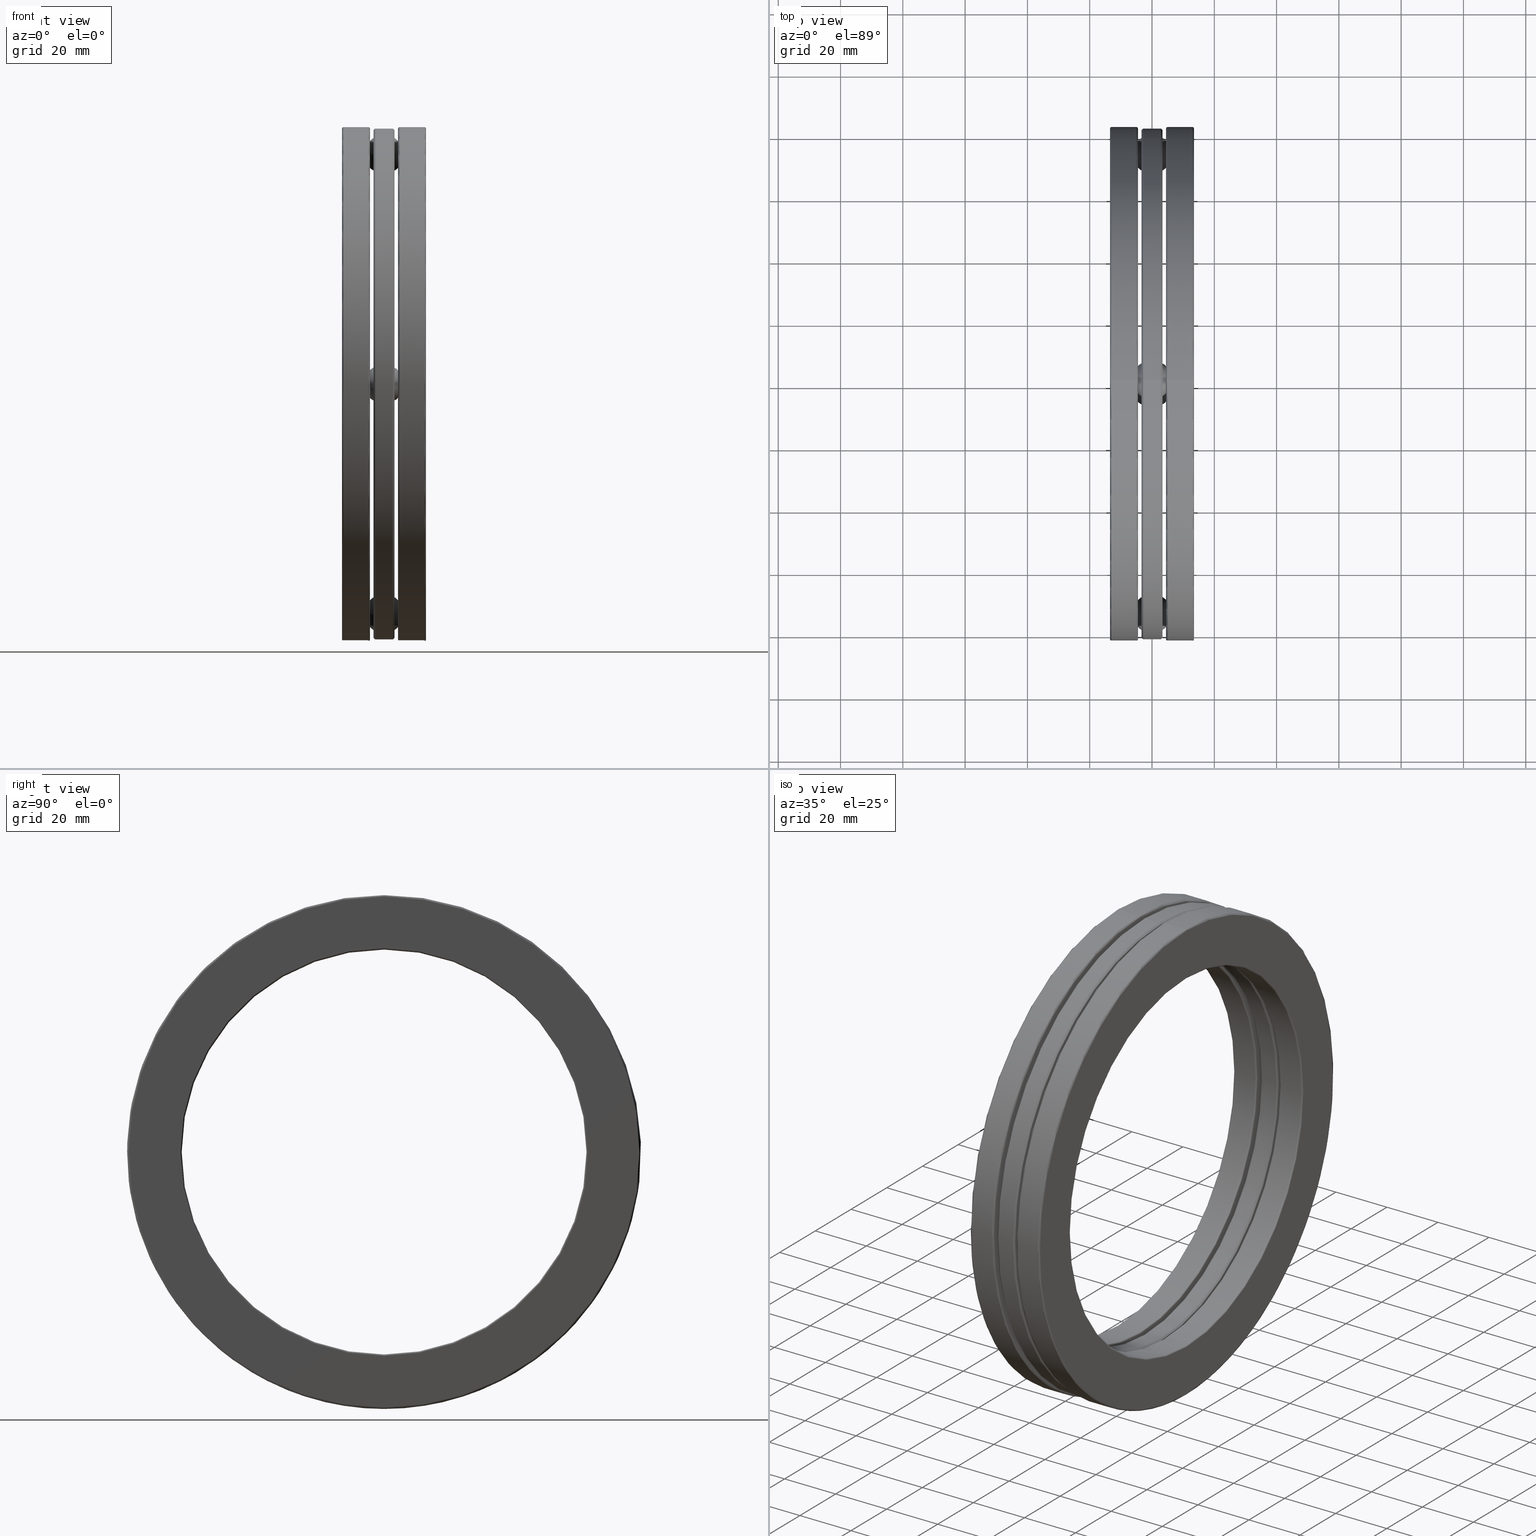
[diagram: canonical four-view strip — front | top / right | iso, engineering-drawing reading convention]
A machine part, canonical four-view strip (front | top / right | iso — engineering-drawing reading convention). The complete STEP part file that produces these views, byte-faithful:
ISO-10303-21;
HEADER;
FILE_DESCRIPTION (( 'STEP AP203' ),
    '1' );
FILE_NAME ('2925-ABB.step',
    '2017-03-07T16:43:18',
    ( '' ),
    ( '' ),
    'SwSTEP 2.0',
    'SolidWorks 2017',
    '' );
FILE_SCHEMA (( 'CONFIG_CONTROL_DESIGN' ));
ENDSEC;

DATA;
#1 = ADVANCED_FACE ( 'NONE', ( #8, #143 ), #30, .F. ) ;
#2 = ORIENTED_EDGE ( 'NONE', *, *, #285, .F. ) ;
#3 = ORIENTED_EDGE ( 'NONE', *, *, #446, .F. ) ;
#4 = CARTESIAN_POINT ( 'NONE',  ( 0.5115000000000016200, 0.0000000000000000000, 0.0000000000000000000 ) ) ;
#5 = EDGE_CURVE ( 'NONE', #334, #334, #506, .T. ) ;
#6 = VERTEX_POINT ( 'NONE', #663 ) ;
#7 = CARTESIAN_POINT ( 'NONE',  ( 1.777880990662169400E-016, 2.903500000000000200, 0.0000000000000000000 ) ) ;
#8 = FACE_OUTER_BOUND ( 'NONE', #462, .T. ) ;
#9 = SECURITY_CLASSIFICATION ( '', '', #171 ) ;
#10 = ORIENTED_EDGE ( 'NONE', *, *, #251, .T. ) ;
#11 = ADVANCED_FACE ( 'NONE', ( #370, #434 ), #253, .F. ) ;
#12 = APPROVAL_PERSON_ORGANIZATION ( #187, #584, #306 ) ;
#13 = FACE_OUTER_BOUND ( 'NONE', #211, .T. ) ;
#14 = DIRECTION ( 'NONE',  ( 0.0000000000000000000, 0.0000000000000000000, 1.000000000000000000 ) ) ;
#15 = AXIS2_PLACEMENT_3D ( 'NONE', #577, #312, #757 ) ;
#16 = DIRECTION ( 'NONE',  ( 0.0000000000000000000, 0.0000000000000000000, 1.000000000000000000 ) ) ;
#17 = CARTESIAN_POINT ( 'NONE',  ( 0.1971702100000013400, 0.0000000000000000000, 0.0000000000000000000 ) ) ;
#18 = ORIENTED_EDGE ( 'NONE', *, *, #747, .T. ) ;
#19 = FACE_BOUND ( 'NONE', #738, .T. ) ;
#20 = CLOSED_SHELL ( 'NONE', ( #393 ) ) ;
#21 = MANIFOLD_SOLID_BREP ( 'Revolve1', #290 ) ;
#22 = APPROVAL_DATE_TIME ( #68, #706 ) ;
#23 = DIRECTION ( 'NONE',  ( -1.000000000000000000, -0.0000000000000000000, -0.0000000000000000000 ) ) ;
#24 = FACE_BOUND ( 'NONE', #708, .T. ) ;
#25 = DIRECTION ( 'NONE',  ( 1.000000000000000000, 0.0000000000000000000, 0.0000000000000000000 ) ) ;
#26 = AXIS2_PLACEMENT_3D ( 'NONE', #325, #771, #256 ) ;
#27 =( LENGTH_UNIT ( ) NAMED_UNIT ( * ) SI_UNIT ( $, .METRE. ) );
#28 = CONICAL_SURFACE ( 'NONE', #520, 2.598999999999999800, 0.7853981633974427300 ) ;
#29 = DIRECTION ( 'NONE',  ( -1.000000000000000000, -0.0000000000000000000, -0.0000000000000000000 ) ) ;
#30 = CYLINDRICAL_SURFACE ( 'NONE', #15, 2.559000000000000200 ) ;
#31 = EDGE_LOOP ( 'NONE', ( #788 ) ) ;
#32 = EDGE_CURVE ( 'NONE', #693, #693, #648, .T. ) ;
#33 = CARTESIAN_POINT ( 'NONE',  ( -0.1971702099999996800, 0.0000000000000000000, 2.559000000000000200 ) ) ;
#34 = CARTESIAN_POINT ( 'NONE',  ( -0.1771702099999997200, 0.0000000000000000000, 0.0000000000000000000 ) ) ;
#35 = LOCAL_TIME ( 11, 43, 18.00000000000000000, #206 ) ;
#36 = DIRECTION ( 'NONE',  ( 0.0000000000000000000, 0.0000000000000000000, 1.000000000000000000 ) ) ;
#37 = CIRCLE ( 'NONE', #561, 3.228000000000000600 ) ;
#38 = CARTESIAN_POINT ( 'NONE',  ( 0.1328750000000000500, 0.0000000000000000000, 0.0000000000000000000 ) ) ;
#39 = DIRECTION ( 'NONE',  ( -1.000000000000000000, -0.0000000000000000000, -0.0000000000000000000 ) ) ;
#40 = DIRECTION ( 'NONE',  ( 0.0000000000000000000, 0.0000000000000000000, 1.000000000000000000 ) ) ;
#41 = AXIS2_PLACEMENT_3D ( 'NONE', #723, #341, #712 ) ;
#42 = EDGE_LOOP ( 'NONE', ( #555 ) ) ;
#43 = CIRCLE ( 'NONE', #756, 2.558999999999999700 ) ;
#44 = CLOSED_SHELL ( 'NONE', ( #789, #186, #468, #375, #517, #126, #194, #254, #440, #331, #85, #412 ) ) ;
#45 = PERSON_AND_ORGANIZATION_ROLE ( 'design_supplier' ) ;
#46 = CARTESIAN_POINT ( 'NONE',  ( -0.5315393700787400800, 3.041254820199311300E-014, 2.903500000000000200 ) ) ;
#47 = PERSON_AND_ORGANIZATION ( #67, #100 ) ;
#48 = FACE_OUTER_BOUND ( 'NONE', #371, .T. ) ;
#49 = CARTESIAN_POINT ( 'NONE',  ( 0.5315000000000004200, 0.0000000000000000000, 2.579000000000000200 ) ) ;
#50 = MANIFOLD_SOLID_BREP ( 'Revolve3', #270 ) ;
#51 =( NAMED_UNIT ( * ) SI_UNIT ( $, .STERADIAN. ) SOLID_ANGLE_UNIT ( ) );
#52 = ORIENTED_EDGE ( 'NONE', *, *, #512, .T. ) ;
#53 = DIRECTION ( 'NONE',  ( -1.000000000000000000, -0.0000000000000000000, -0.0000000000000000000 ) ) ;
#54 = FACE_BOUND ( 'NONE', #611, .T. ) ;
#55 = EDGE_LOOP ( 'NONE', ( #477 ) ) ;
#56 = CC_DESIGN_PERSON_AND_ORGANIZATION_ASSIGNMENT ( #535, #435, ( #9 ) ) ;
#57 = LOCAL_TIME ( 11, 43, 18.00000000000000000, #395 ) ;
#58 = CARTESIAN_POINT ( 'NONE',  ( 0.0000000000000000000, 0.0000000000000000000, 0.0000000000000000000 ) ) ;
#59 = FACE_OUTER_BOUND ( 'NONE', #400, .T. ) ;
#60 = CARTESIAN_POINT ( 'NONE',  ( 0.5115000000000016200, 0.0000000000000000000, 0.0000000000000000000 ) ) ;
#61 = EDGE_CURVE ( 'NONE', #815, #815, #83, .T. ) ;
#62 = ORIENTED_EDGE ( 'NONE', *, *, #271, .T. ) ;
#63 = DIRECTION ( 'NONE',  ( 0.0000000000000000000, 0.0000000000000000000, 1.000000000000000000 ) ) ;
#64 = CIRCLE ( 'NONE', #616, 0.2550000000000001700 ) ;
#65 = DIRECTION ( 'NONE',  ( 0.0000000000000000000, 0.0000000000000000000, -1.000000000000000000 ) ) ;
#66 = PRODUCT_RELATED_PRODUCT_CATEGORY ( 'detail', '', ( #521 ) ) ;
#67 = PERSON ( 'UNSPECIFIED', 'UNSPECIFIED', 'UNSPECIFIED', ('UNSPECIFIED'), ('UNSPECIFIED'), ('UNSPECIFIED') ) ;
#68 = DATE_AND_TIME ( #213, #236 ) ;
#69 = ADVANCED_FACE ( 'NONE', ( #750, #301 ), #244, .T. ) ;
#70 = CIRCLE ( 'NONE', #273, 2.727117697348753600 ) ;
#71 = DIRECTION ( 'NONE',  ( -1.000000000000000000, -0.0000000000000000000, -0.0000000000000000000 ) ) ;
#72 = ORIENTED_EDGE ( 'NONE', *, *, #78, .T. ) ;
#73 = FACE_BOUND ( 'NONE', #628, .T. ) ;
#74 = FACE_BOUND ( 'NONE', #368, .T. ) ;
#75 = EDGE_LOOP ( 'NONE', ( #387 ) ) ;
#76 = AXIS2_PLACEMENT_3D ( 'NONE', #451, #762, #516 ) ;
#77 = DIRECTION ( 'NONE',  ( 0.0000000000000000000, 0.0000000000000000000, 1.000000000000000000 ) ) ;
#78 = EDGE_CURVE ( 'NONE', #666, #666, #166, .T. ) ;
#79 = VERTEX_POINT ( 'NONE', #617 ) ;
#80 = FACE_OUTER_BOUND ( 'NONE', #125, .T. ) ;
#81 = AXIS2_PLACEMENT_3D ( 'NONE', #471, #208, #397 ) ;
#82 = ORIENTED_EDGE ( 'NONE', *, *, #110, .T. ) ;
#83 = CIRCLE ( 'NONE', #357, 3.079882302651245400 ) ;
#84 = EDGE_LOOP ( 'NONE', ( #18 ) ) ;
#85 = ADVANCED_FACE ( 'NONE', ( #767, #250 ), #576, .F. ) ;
#86 = AXIS2_PLACEMENT_3D ( 'NONE', #103, #602, #217 ) ;
#87 = AXIS2_PLACEMENT_3D ( 'NONE', #700, #644, #574 ) ;
#88 = MANIFOLD_SOLID_BREP ( 'Revolve4', #709 ) ;
#89 = DIRECTION ( 'NONE',  ( 1.000000000000000000, 0.0000000000000000000, 0.0000000000000000000 ) ) ;
#90 = FACE_OUTER_BOUND ( 'NONE', #487, .T. ) ;
#91 = CARTESIAN_POINT ( 'NONE',  ( -0.1128750000000000200, 0.0000000000000000000, 0.0000000000000000000 ) ) ;
#92 = CARTESIAN_POINT ( 'NONE',  ( -0.1328749999999999400, 0.0000000000000000000, 0.0000000000000000000 ) ) ;
#93 = EDGE_LOOP ( 'NONE', ( #776 ) ) ;
#94 = DIRECTION ( 'NONE',  ( -1.000000000000000000, -0.0000000000000000000, -0.0000000000000000000 ) ) ;
#95 = CLOSED_SHELL ( 'NONE', ( #157 ) ) ;
#96 = AXIS2_PLACEMENT_3D ( 'NONE', #754, #760, #436 ) ;
#97 = CARTESIAN_POINT ( 'NONE',  ( -0.1971702099999996800, 0.0000000000000000000, 0.0000000000000000000 ) ) ;
#98 = ADVANCED_FACE ( 'NONE', ( #402, #137 ), #330, .T. ) ;
#99 = DIRECTION ( 'NONE',  ( -1.000000000000000000, -0.0000000000000000000, -0.0000000000000000000 ) ) ;
#100 = ORGANIZATION ( 'UNSPECIFIED', 'UNSPECIFIED', '' ) ;
#101 = EDGE_CURVE ( 'NONE', #282, #282, #234, .T. ) ;
#102 = TOROIDAL_SURFACE ( 'NONE', #81, 2.903500000000000200, 0.2499999999999998100 ) ;
#103 = CARTESIAN_POINT ( 'NONE',  ( 1.777880990662169400E-016, -2.903500000000000200, 0.0000000000000000000 ) ) ;
#104 = CC_DESIGN_DATE_AND_TIME_ASSIGNMENT ( #196, #495, ( #9 ) ) ;
#105 = CARTESIAN_POINT ( 'NONE',  ( 1.777880990662169400E-016, 3.041254820199311300E-014, 2.903500000000000200 ) ) ;
#106 = CARTESIAN_POINT ( 'NONE',  ( 0.1328749999999999900, 0.0000000000000000000, 0.0000000000000000000 ) ) ;
#107 = CARTESIAN_POINT ( 'NONE',  ( 0.5115000000000016200, 0.0000000000000000000, 0.0000000000000000000 ) ) ;
#108 = EDGE_LOOP ( 'NONE', ( #588 ) ) ;
#109 = ORIENTED_EDGE ( 'NONE', *, *, #404, .T. ) ;
#110 = EDGE_CURVE ( 'NONE', #582, #582, #64, .T. ) ;
#111 = CARTESIAN_POINT ( 'NONE',  ( 0.1771702100000013500, 0.0000000000000000000, 2.727117697348755400 ) ) ;
#112 = DIRECTION ( 'NONE',  ( 1.000000000000000000, 0.0000000000000000000, 0.0000000000000000000 ) ) ;
#113 = VERTEX_POINT ( 'NONE', #609 ) ;
#114 = APPLICATION_PROTOCOL_DEFINITION ( 'international standard', 'config_control_design', 1994, #684 ) ;
#115 = FACE_BOUND ( 'NONE', #176, .T. ) ;
#116 = DIRECTION ( 'NONE',  ( 0.0000000000000000000, 0.0000000000000000000, 1.000000000000000000 ) ) ;
#117 = CARTESIAN_POINT ( 'NONE',  ( 0.1328749999999999900, 0.0000000000000000000, 3.208000000000001100 ) ) ;
#118 = FACE_OUTER_BOUND ( 'NONE', #392, .T. ) ;
#119 = PLANE ( 'NONE',  #705 ) ;
#120 = FACE_BOUND ( 'NONE', #660, .T. ) ;
#121 = AXIS2_PLACEMENT_3D ( 'NONE', #215, #414, #675 ) ;
#122 = AXIS2_PLACEMENT_3D ( 'NONE', #91, #463, #14 ) ;
#123 = CARTESIAN_POINT ( 'NONE',  ( 0.5315000000000004200, 0.0000000000000000000, 0.0000000000000000000 ) ) ;
#124 = AXIS2_PLACEMENT_3D ( 'NONE', #34, #339, #790 ) ;
#125 = EDGE_LOOP ( 'NONE', ( #174 ) ) ;
#126 = ADVANCED_FACE ( 'NONE', ( #630, #791 ), #640, .F. ) ;
#127 = EDGE_LOOP ( 'NONE', ( #209 ) ) ;
#128 = ORIENTED_EDGE ( 'NONE', *, *, #346, .T. ) ;
#129 = EDGE_LOOP ( 'NONE', ( #426 ) ) ;
#130 = VERTEX_POINT ( 'NONE', #546 ) ;
#131 = AXIS2_PLACEMENT_3D ( 'NONE', #4, #519, #457 ) ;
#132 = DIRECTION ( 'NONE',  ( 0.0000000000000000000, 0.0000000000000000000, 1.000000000000000000 ) ) ;
#133 = CIRCLE ( 'NONE', #145, 3.208000000000001100 ) ;
#134 = ADVANCED_FACE ( 'NONE', ( #670, #327 ), #620, .T. ) ;
#135 = EDGE_LOOP ( 'NONE', ( #203 ) ) ;
#136 = FACE_OUTER_BOUND ( 'NONE', #548, .T. ) ;
#137 = FACE_OUTER_BOUND ( 'NONE', #549, .T. ) ;
#138 = ADVANCED_FACE ( 'NONE', ( #456, #813 ), #281, .T. ) ;
#139 = AXIS2_PLACEMENT_3D ( 'NONE', #220, #29, #284 ) ;
#140 = CARTESIAN_POINT ( 'NONE',  ( 0.0000000000000000000, 0.0000000000000000000, 0.0000000000000000000 ) ) ;
#141 = EDGE_CURVE ( 'NONE', #292, #292, #820, .T. ) ;
#142 = FACE_BOUND ( 'NONE', #731, .T. ) ;
#143 = FACE_OUTER_BOUND ( 'NONE', #729, .T. ) ;
#144 = EDGE_LOOP ( 'NONE', ( #252 ) ) ;
#145 = AXIS2_PLACEMENT_3D ( 'NONE', #319, #450, #704 ) ;
#146 = DIRECTION ( 'NONE',  ( -1.000000000000000000, -0.0000000000000000000, -0.0000000000000000000 ) ) ;
#147 = EDGE_CURVE ( 'NONE', #502, #502, #598, .T. ) ;
#148 = APPROVAL_DATE_TIME ( #713, #584 ) ;
#149 = FACE_OUTER_BOUND ( 'NONE', #75, .T. ) ;
#150 = CARTESIAN_POINT ( 'NONE',  ( 0.0000000000000000000, 0.0000000000000000000, 0.0000000000000000000 ) ) ;
#151 = DIRECTION ( 'NONE',  ( 0.0000000000000000000, 0.0000000000000000000, 1.000000000000000000 ) ) ;
#152 = EDGE_LOOP ( 'NONE', ( #248 ) ) ;
#153 = FACE_BOUND ( 'NONE', #475, .T. ) ;
#154 = CARTESIAN_POINT ( 'NONE',  ( -0.1328749999999999400, -1.862655491369751800E-017, 0.0000000000000000000 ) ) ;
#155 = EDGE_LOOP ( 'NONE', ( #309 ) ) ;
#156 = CARTESIAN_POINT ( 'NONE',  ( 0.1971702100000013400, 0.0000000000000000000, 0.0000000000000000000 ) ) ;
#157 = ADVANCED_FACE ( 'NONE', ( ), #259, .T. ) ;
#158 = CARTESIAN_POINT ( 'NONE',  ( -0.5314999999999999700, 0.0000000000000000000, 0.0000000000000000000 ) ) ;
#159 = VERTEX_POINT ( 'NONE', #493 ) ;
#160 = PLANE ( 'NONE',  #685 ) ;
#161 = DIRECTION ( 'NONE',  ( 0.0000000000000000000, 1.000000000000000000, -1.071312938691867200E-014 ) ) ;
#162 = EDGE_LOOP ( 'NONE', ( #195 ) ) ;
#163 = CIRCLE ( 'NONE', #772, 2.579000000000000200 ) ;
#164 = AXIS2_PLACEMENT_3D ( 'NONE', #107, #300, #116 ) ;
#165 = CARTESIAN_POINT ( 'NONE',  ( 0.5315000000000004200, 0.0000000000000000000, 3.228000000000000600 ) ) ;
#166 = CIRCLE ( 'NONE', #373, 0.2550000000000001700 ) ;
#167 = ORIENTED_EDGE ( 'NONE', *, *, #61, .F. ) ;
#168 = CARTESIAN_POINT ( 'NONE',  ( -0.1971702099999996800, 0.0000000000000000000, 3.248000000000000200 ) ) ;
#169 = VERTEX_POINT ( 'NONE', #361 ) ;
#170 = FACE_OUTER_BOUND ( 'NONE', #155, .T. ) ;
#171 = SECURITY_CLASSIFICATION_LEVEL ( 'unclassified' ) ;
#172 = DIRECTION ( 'NONE',  ( -1.000000000000000000, -0.0000000000000000000, -0.0000000000000000000 ) ) ;
#173 =( GEOMETRIC_REPRESENTATION_CONTEXT ( 3 ) GLOBAL_UNCERTAINTY_ASSIGNED_CONTEXT ( ( #343 ) ) GLOBAL_UNIT_ASSIGNED_CONTEXT ( ( #744, #366, #51 ) ) REPRESENTATION_CONTEXT ( 'NONE', 'WORKASPACE' ) );
#174 = ORIENTED_EDGE ( 'NONE', *, *, #437, .T. ) ;
#175 = DIRECTION ( 'NONE',  ( 0.0000000000000000000, 0.0000000000000000000, 1.000000000000000000 ) ) ;
#176 = EDGE_LOOP ( 'NONE', ( #567 ) ) ;
#177 = DIRECTION ( 'NONE',  ( 1.000000000000000000, 0.0000000000000000000, 0.0000000000000000000 ) ) ;
#178 = CYLINDRICAL_SURFACE ( 'NONE', #337, 0.2550000000000001700 ) ;
#179 = DIRECTION ( 'NONE',  ( 1.000000000000000000, 0.0000000000000000000, 0.0000000000000000000 ) ) ;
#180 = AXIS2_PLACEMENT_3D ( 'NONE', #418, #112, #40 ) ;
#181 = PERSON_AND_ORGANIZATION_ROLE ( 'design_owner' ) ;
#182 = DIRECTION ( 'NONE',  ( 1.000000000000000000, 0.0000000000000000000, 0.0000000000000000000 ) ) ;
#183 = CARTESIAN_POINT ( 'NONE',  ( 0.1128749999999999900, 0.0000000000000000000, 0.0000000000000000000 ) ) ;
#184 = EDGE_LOOP ( 'NONE', ( #167 ) ) ;
#185 = ORIENTED_EDGE ( 'NONE', *, *, #452, .T. ) ;
#186 = ADVANCED_FACE ( 'NONE', ( #120, #416 ), #524, .T. ) ;
#187 = PERSON_AND_ORGANIZATION ( #67, #100 ) ;
#188 = FACE_OUTER_BOUND ( 'NONE', #464, .T. ) ;
#189 = DIRECTION ( 'NONE',  ( -1.000000000000000000, -0.0000000000000000000, -0.0000000000000000000 ) ) ;
#190 = AXIS2_PLACEMENT_3D ( 'NONE', #391, #202, #522 ) ;
#191 = DIRECTION ( 'NONE',  ( 0.0000000000000000000, 0.0000000000000000000, 1.000000000000000000 ) ) ;
#192 = ORIENTED_EDGE ( 'NONE', *, *, #247, .F. ) ;
#193 = CIRCLE ( 'NONE', #573, 3.248000000000000200 ) ;
#194 = ADVANCED_FACE ( 'NONE', ( #558, #201 ), #28, .F. ) ;
#195 = ORIENTED_EDGE ( 'NONE', *, *, #101, .T. ) ;
#196 = DATE_AND_TIME ( #570, #363 ) ;
#197 = CIRCLE ( 'NONE', #554, 3.208000000000001100 ) ;
#198 = ADVANCED_BREP_SHAPE_REPRESENTATION ( '2925-ABB', ( #21, #50, #88, #642, #701, #763, #500, #419 ), #173 ) ;
#199 = DIRECTION ( 'NONE',  ( -1.000000000000000000, -0.0000000000000000000, -0.0000000000000000000 ) ) ;
#200 = DIRECTION ( 'NONE',  ( -1.000000000000000000, -0.0000000000000000000, -0.0000000000000000000 ) ) ;
#201 = FACE_OUTER_BOUND ( 'NONE', #507, .T. ) ;
#202 = DIRECTION ( 'NONE',  ( -1.000000000000000000, -0.0000000000000000000, -0.0000000000000000000 ) ) ;
#203 = ORIENTED_EDGE ( 'NONE', *, *, #5, .T. ) ;
#204 = AXIS2_PLACEMENT_3D ( 'NONE', #566, #447, #191 ) ;
#205 = DIRECTION ( 'NONE',  ( 1.000000000000000000, 0.0000000000000000000, 0.0000000000000000000 ) ) ;
#206 = COORDINATED_UNIVERSAL_TIME_OFFSET ( 5, 0, .BEHIND. ) ;
#207 = TOROIDAL_SURFACE ( 'NONE', #799, 3.228000000000000600, 0.01999999999999987200 ) ;
#208 = DIRECTION ( 'NONE',  ( -1.000000000000000000, -0.0000000000000000000, -0.0000000000000000000 ) ) ;
#209 = ORIENTED_EDGE ( 'NONE', *, *, #678, .T. ) ;
#210 = CIRCLE ( 'NONE', #180, 0.2550000000000001700 ) ;
#211 = EDGE_LOOP ( 'NONE', ( #453 ) ) ;
#212 = DIRECTION ( 'NONE',  ( 0.0000000000000000000, 0.0000000000000000000, 1.000000000000000000 ) ) ;
#213 = CALENDAR_DATE ( 2017, 7, 3 ) ;
#214 = FACE_BOUND ( 'NONE', #486, .T. ) ;
#215 = CARTESIAN_POINT ( 'NONE',  ( 0.1328750000000000200, -1.013751606733104000E-014, -2.903500000000000200 ) ) ;
#216 = DIRECTION ( 'NONE',  ( 0.0000000000000000000, 0.0000000000000000000, 1.000000000000000000 ) ) ;
#217 = DIRECTION ( 'NONE',  ( -1.000000000000000000, 0.0000000000000000000, 0.0000000000000000000 ) ) ;
#218 = EDGE_LOOP ( 'NONE', ( #627 ) ) ;
#219 = CIRCLE ( 'NONE', #261, 3.228000000000000600 ) ;
#220 = CARTESIAN_POINT ( 'NONE',  ( -0.1128749999999999200, 0.0000000000000000000, 0.0000000000000000000 ) ) ;
#221 = ORIENTED_EDGE ( 'NONE', *, *, #304, .T. ) ;
#222 = EDGE_LOOP ( 'NONE', ( #82 ) ) ;
#223 = CARTESIAN_POINT ( 'NONE',  ( -0.1328750000000000200, 0.0000000000000000000, 0.0000000000000000000 ) ) ;
#224 = DIRECTION ( 'NONE',  ( 0.0000000000000000000, 0.0000000000000000000, 1.000000000000000000 ) ) ;
#225 = VERTEX_POINT ( 'NONE', #482 ) ;
#226 = CARTESIAN_POINT ( 'NONE',  ( -0.5314999999999999700, 0.0000000000000000000, 2.579000000000000200 ) ) ;
#227 = CONICAL_SURFACE ( 'NONE', #782, 3.208000000000001100, 0.7853981633974431700 ) ;
#228 = AXIS2_PLACEMENT_3D ( 'NONE', #406, #595, #212 ) ;
#229 = CARTESIAN_POINT ( 'NONE',  ( -0.5314999999999999700, 0.0000000000000000000, 3.228000000000000600 ) ) ;
#230 = PRODUCT_DEFINITION_SHAPE ( 'NONE', 'NONE',  #669 ) ;
#231 = ORIENTED_EDGE ( 'NONE', *, *, #512, .F. ) ;
#232 = AXIS2_PLACEMENT_3D ( 'NONE', #105, #724, #668 ) ;
#233 = APPROVAL_STATUS ( 'not_yet_approved' ) ;
#234 = CIRCLE ( 'NONE', #190, 0.2550000000000001700 ) ;
#235 = ORIENTED_EDGE ( 'NONE', *, *, #316, .T. ) ;
#236 = LOCAL_TIME ( 11, 43, 18.00000000000000000, #518 ) ;
#237 = SPHERICAL_SURFACE ( 'NONE', #86, 0.2499999999999998100 ) ;
#238 = CARTESIAN_POINT ( 'NONE',  ( -0.1128750000000000200, 0.0000000000000000000, 3.228000000000000600 ) ) ;
#239 = LOCAL_TIME ( 11, 43, 18.00000000000000000, #707 ) ;
#240 = EDGE_LOOP ( 'NONE', ( #296 ) ) ;
#241 = DIRECTION ( 'NONE',  ( 1.000000000000000000, 0.0000000000000000000, 0.0000000000000000000 ) ) ;
#242 = EDGE_CURVE ( 'NONE', #645, #645, #800, .T. ) ;
#243 = FACE_OUTER_BOUND ( 'NONE', #415, .T. ) ;
#244 = TOROIDAL_SURFACE ( 'NONE', #329, 3.228000000000000600, 0.02000000000000016300 ) ;
#245 = AXIS2_PLACEMENT_3D ( 'NONE', #7, #529, #410 ) ;
#246 = FACE_OUTER_BOUND ( 'NONE', #759, .T. ) ;
#247 = EDGE_CURVE ( 'NONE', #794, #794, #466, .T. ) ;
#248 = ORIENTED_EDGE ( 'NONE', *, *, #409, .T. ) ;
#249 = CARTESIAN_POINT ( 'NONE',  ( -0.5315393700787400800, -1.013751606733104000E-014, -2.903500000000000200 ) ) ;
#250 = FACE_OUTER_BOUND ( 'NONE', #222, .T. ) ;
#251 = EDGE_CURVE ( 'NONE', #623, #623, #43, .T. ) ;
#252 = ORIENTED_EDGE ( 'NONE', *, *, #404, .F. ) ;
#253 = PLANE ( 'NONE',  #560 ) ;
#254 = ADVANCED_FACE ( 'NONE', ( #74, #659, #818, #142, #523, #118 ), #534, .F. ) ;
#255 = FACE_OUTER_BOUND ( 'NONE', #93, .T. ) ;
#256 = DIRECTION ( 'NONE',  ( 0.0000000000000000000, 0.0000000000000000000, 1.000000000000000000 ) ) ;
#257 = EDGE_LOOP ( 'NONE', ( #711 ) ) ;
#258 = FACE_OUTER_BOUND ( 'NONE', #539, .T. ) ;
#259 = SPHERICAL_SURFACE ( 'NONE', #232, 0.2499999999999998100 ) ;
#260 = DIRECTION ( 'NONE',  ( 0.0000000000000000000, 0.0000000000000000000, -1.000000000000000000 ) ) ;
#261 = AXIS2_PLACEMENT_3D ( 'NONE', #123, #438, #372 ) ;
#262 = CARTESIAN_POINT ( 'NONE',  ( -0.5114999999999999500, 0.0000000000000000000, 0.0000000000000000000 ) ) ;
#263 = DIRECTION ( 'NONE',  ( 0.0000000000000000000, 0.0000000000000000000, 1.000000000000000000 ) ) ;
#264 = ADVANCED_FACE ( 'NONE', ( #243, #136 ), #798, .F. ) ;
#265 = EDGE_CURVE ( 'NONE', #761, #761, #193, .T. ) ;
#266 = DIRECTION ( 'NONE',  ( -1.000000000000000000, -0.0000000000000000000, -0.0000000000000000000 ) ) ;
#267 = ORIENTED_EDGE ( 'NONE', *, *, #808, .F. ) ;
#268 = ORIENTED_EDGE ( 'NONE', *, *, #656, .F. ) ;
#269 = DIRECTION ( 'NONE',  ( -1.000000000000000000, -0.0000000000000000000, -0.0000000000000000000 ) ) ;
#270 = CLOSED_SHELL ( 'NONE', ( #591, #768, #134, #1, #336, #98, #643, #138, #383, #11 ) ) ;
#271 = EDGE_CURVE ( 'NONE', #674, #674, #210, .T. ) ;
#272 = VERTEX_POINT ( 'NONE', #117 ) ;
#273 = AXIS2_PLACEMENT_3D ( 'NONE', #382, #646, #263 ) ;
#274 = FACE_OUTER_BOUND ( 'NONE', #55, .T. ) ;
#275 = DIRECTION ( 'NONE',  ( -1.000000000000000000, -0.0000000000000000000, -0.0000000000000000000 ) ) ;
#276 = PLANE ( 'NONE',  #41 ) ;
#277 = DIRECTION ( 'NONE',  ( 0.0000000000000000000, 0.0000000000000000000, 1.000000000000000000 ) ) ;
#278 = ORIENTED_EDGE ( 'NONE', *, *, #265, .T. ) ;
#279 = FACE_OUTER_BOUND ( 'NONE', #690, .T. ) ;
#280 = CARTESIAN_POINT ( 'NONE',  ( -0.1771702099999997200, 0.0000000000000000000, 2.579000000000000200 ) ) ;
#281 = CYLINDRICAL_SURFACE ( 'NONE', #647, 3.248000000000000200 ) ;
#282 = VERTEX_POINT ( 'NONE', #283 ) ;
#283 = CARTESIAN_POINT ( 'NONE',  ( -0.1328749999999999400, -0.2550000000000102700, -2.903499999999999700 ) ) ;
#284 = DIRECTION ( 'NONE',  ( 0.0000000000000000000, 0.0000000000000000000, 1.000000000000000000 ) ) ;
#285 = EDGE_CURVE ( 'NONE', #770, #770, #639, .T. ) ;
#286 = DIRECTION ( 'NONE',  ( 1.000000000000000000, 0.0000000000000000000, 0.0000000000000000000 ) ) ;
#287 = EDGE_LOOP ( 'NONE', ( #777 ) ) ;
#288 = ORIENTED_EDGE ( 'NONE', *, *, #569, .T. ) ;
#289 = DIRECTION ( 'NONE',  ( 1.000000000000000000, 0.0000000000000000000, 0.0000000000000000000 ) ) ;
#290 = CLOSED_SHELL ( 'NONE', ( #264, #318, #526, #581, #69, #401, #603, #398, #637, #655 ) ) ;
#291 = DIRECTION ( 'NONE',  ( 0.0000000000000000000, 0.0000000000000000000, -1.000000000000000000 ) ) ;
#292 = VERTEX_POINT ( 'NONE', #226 ) ;
#293 = FACE_OUTER_BOUND ( 'NONE', #443, .T. ) ;
#294 = CARTESIAN_POINT ( 'NONE',  ( 0.1971702100000013400, 0.0000000000000000000, 0.0000000000000000000 ) ) ;
#295 = CARTESIAN_POINT ( 'NONE',  ( 0.0000000000000000000, 0.0000000000000000000, 0.0000000000000000000 ) ) ;
#296 = ORIENTED_EDGE ( 'NONE', *, *, #346, .F. ) ;
#297 = CARTESIAN_POINT ( 'NONE',  ( 0.1128750000000000600, 0.0000000000000000000, 2.579000000000000200 ) ) ;
#298 = CIRCLE ( 'NONE', #662, 3.228000000000000600 ) ;
#299 = AXIS2_PLACEMENT_3D ( 'NONE', #156, #94, #478 ) ;
#300 = DIRECTION ( 'NONE',  ( -1.000000000000000000, -0.0000000000000000000, -0.0000000000000000000 ) ) ;
#301 = FACE_OUTER_BOUND ( 'NONE', #340, .T. ) ;
#302 = DATE_TIME_ROLE ( 'creation_date' ) ;
#303 = DIRECTION ( 'NONE',  ( 0.0000000000000000000, 0.0000000000000000000, -1.000000000000000000 ) ) ;
#304 = EDGE_CURVE ( 'NONE', #130, #130, #476, .T. ) ;
#305 = VERTEX_POINT ( 'NONE', #111 ) ;
#306 = APPROVAL_ROLE ( '' ) ;
#307 = DIRECTION ( 'NONE',  ( 0.0000000000000000000, 0.0000000000000000000, -1.000000000000000000 ) ) ;
#308 = EDGE_CURVE ( 'NONE', #509, #509, #388, .T. ) ;
#309 = ORIENTED_EDGE ( 'NONE', *, *, #803, .T. ) ;
#310 = ORIENTED_EDGE ( 'NONE', *, *, #592, .T. ) ;
#311 = CARTESIAN_POINT ( 'NONE',  ( 0.0000000000000000000, 0.0000000000000000000, 0.0000000000000000000 ) ) ;
#312 = DIRECTION ( 'NONE',  ( -1.000000000000000000, -0.0000000000000000000, -0.0000000000000000000 ) ) ;
#313 = LENGTH_MEASURE_WITH_UNIT ( LENGTH_MEASURE( 0.02539999999999999900 ), #27 );
#314 = CARTESIAN_POINT ( 'NONE',  ( 1.777880990662169400E-016, -1.013751606733104000E-014, -2.903500000000000200 ) ) ;
#315 = CIRCLE ( 'NONE', #26, 2.579000000000000200 ) ;
#316 = EDGE_CURVE ( 'NONE', #113, #113, #380, .T. ) ;
#317 = CARTESIAN_POINT ( 'NONE',  ( 0.1771702100000013500, 0.0000000000000000000, 0.0000000000000000000 ) ) ;
#318 = ADVANCED_FACE ( 'NONE', ( #697, #728 ), #119, .T. ) ;
#319 = CARTESIAN_POINT ( 'NONE',  ( -0.1328750000000000200, 0.0000000000000000000, 0.0000000000000000000 ) ) ;
#320 = SHAPE_DEFINITION_REPRESENTATION ( #230, #198 ) ;
#321 = ORIENTED_EDGE ( 'NONE', *, *, #592, .F. ) ;
#322 = CLOSED_SHELL ( 'NONE', ( #778 ) ) ;
#323 = DIRECTION ( 'NONE',  ( 1.000000000000000000, 0.0000000000000000000, 0.0000000000000000000 ) ) ;
#324 = VERTEX_POINT ( 'NONE', #793 ) ;
#325 = CARTESIAN_POINT ( 'NONE',  ( 0.1128750000000000600, 0.0000000000000000000, 0.0000000000000000000 ) ) ;
#326 = ORIENTED_EDGE ( 'NONE', *, *, #271, .F. ) ;
#327 = FACE_OUTER_BOUND ( 'NONE', #42, .T. ) ;
#328 = ORIENTED_EDGE ( 'NONE', *, *, #141, .T. ) ;
#329 = AXIS2_PLACEMENT_3D ( 'NONE', #472, #587, #719 ) ;
#330 = PLANE ( 'NONE',  #531 ) ;
#331 = ADVANCED_FACE ( 'NONE', ( #687, #556 ), #540, .F. ) ;
#332 = VERTEX_POINT ( 'NONE', #499 ) ;
#333 = DIRECTION ( 'NONE',  ( 0.0000000000000000000, 0.0000000000000000000, 1.000000000000000000 ) ) ;
#334 = VERTEX_POINT ( 'NONE', #543 ) ;
#335 = DIRECTION ( 'NONE',  ( 0.0000000000000000000, 0.0000000000000000000, 1.000000000000000000 ) ) ;
#336 = ADVANCED_FACE ( 'NONE', ( #258, #766 ), #338, .T. ) ;
#337 = AXIS2_PLACEMENT_3D ( 'NONE', #442, #564, #303 ) ;
#338 = TOROIDAL_SURFACE ( 'NONE', #164, 2.579000000000000200, 0.01999999999999931000 ) ;
#339 = DIRECTION ( 'NONE',  ( -1.000000000000000000, -0.0000000000000000000, -0.0000000000000000000 ) ) ;
#340 = EDGE_LOOP ( 'NONE', ( #514 ) ) ;
#341 = DIRECTION ( 'NONE',  ( 1.000000000000000000, 0.0000000000000000000, 0.0000000000000000000 ) ) ;
#342 = AXIS2_PLACEMENT_3D ( 'NONE', #249, #241, #378 ) ;
#343 = UNCERTAINTY_MEASURE_WITH_UNIT (LENGTH_MEASURE( 1.000000000000000100E-005 ), #744, 'distance_accuracy_value', 'NONE');
#344 = DIRECTION ( 'NONE',  ( 0.0000000000000000000, 0.0000000000000000000, 1.000000000000000000 ) ) ;
#345 = CARTESIAN_POINT ( 'NONE',  ( 1.777880990662169400E-016, 0.0000000000000000000, 0.0000000000000000000 ) ) ;
#346 = EDGE_CURVE ( 'NONE', #490, #490, #298, .T. ) ;
#347 = CARTESIAN_POINT ( 'NONE',  ( 0.5115000000000016200, 0.0000000000000000000, 2.559000000000000200 ) ) ;
#348 = CARTESIAN_POINT ( 'NONE',  ( -0.5114999999999999500, 0.0000000000000000000, 3.248000000000001100 ) ) ;
#349 = EDGE_LOOP ( 'NONE', ( #381 ) ) ;
#350 = EDGE_LOOP ( 'NONE', ( #695 ) ) ;
#351 = EDGE_CURVE ( 'NONE', #448, #448, #219, .T. ) ;
#352 = CARTESIAN_POINT ( 'NONE',  ( 0.1771702100000013500, 0.0000000000000000000, 0.0000000000000000000 ) ) ;
#353 = CARTESIAN_POINT ( 'NONE',  ( 0.1971702100000013400, 0.0000000000000000000, 0.0000000000000000000 ) ) ;
#354 = AXIS2_PLACEMENT_3D ( 'NONE', #804, #484, #36 ) ;
#355 = CIRCLE ( 'NONE', #354, 2.579000000000000200 ) ;
#356 = DIRECTION ( 'NONE',  ( 0.0000000000000000000, 0.0000000000000000000, 1.000000000000000000 ) ) ;
#357 = AXIS2_PLACEMENT_3D ( 'NONE', #405, #266, #333 ) ;
#358 = APPLICATION_PROTOCOL_DEFINITION ( 'international standard', 'config_control_design', 1994, #809 ) ;
#359 = EDGE_LOOP ( 'NONE', ( #72 ) ) ;
#360 = ORIENTED_EDGE ( 'NONE', *, *, #351, .T. ) ;
#361 = CARTESIAN_POINT ( 'NONE',  ( -0.1328749999999999400, 0.2550000000000305900, 2.903499999999997500 ) ) ;
#362 = DIRECTION ( 'NONE',  ( 0.0000000000000000000, 0.0000000000000000000, 1.000000000000000000 ) ) ;
#363 = LOCAL_TIME ( 11, 43, 18.00000000000000000, #721 ) ;
#364 = CC_DESIGN_APPROVAL ( #584, ( #669 ) ) ;
#365 = CYLINDRICAL_SURFACE ( 'NONE', #461, 3.228000000000000600 ) ;
#366 =( NAMED_UNIT ( * ) PLANE_ANGLE_UNIT ( ) SI_UNIT ( $, .RADIAN. ) );
#367 = CARTESIAN_POINT ( 'NONE',  ( -0.5314999999999999700, 0.0000000000000000000, 0.0000000000000000000 ) ) ;
#368 = EDGE_LOOP ( 'NONE', ( #739 ) ) ;
#369 = AXIS2_PLACEMENT_3D ( 'NONE', #533, #654, #335 ) ;
#370 = FACE_BOUND ( 'NONE', #184, .T. ) ;
#371 = EDGE_LOOP ( 'NONE', ( #310 ) ) ;
#372 = DIRECTION ( 'NONE',  ( 0.0000000000000000000, 0.0000000000000000000, 1.000000000000000000 ) ) ;
#373 = AXIS2_PLACEMENT_3D ( 'NONE', #583, #784, #593 ) ;
#374 = PERSON_AND_ORGANIZATION ( #67, #100 ) ;
#375 = ADVANCED_FACE ( 'NONE', ( #748, #73, #153, #19, #54, #812 ), #816, .T. ) ;
#376 = CIRCLE ( 'NONE', #76, 0.2550000000000001700 ) ;
#377 = DESIGN_CONTEXT ( 'detailed design', #809, 'design' ) ;
#378 = DIRECTION ( 'NONE',  ( 0.0000000000000000000, -1.000000000000000000, 4.285251754767468700E-015 ) ) ;
#379 = EDGE_LOOP ( 'NONE', ( #321 ) ) ;
#380 = CIRCLE ( 'NONE', #619, 2.559000000000000200 ) ;
#381 = ORIENTED_EDGE ( 'NONE', *, *, #247, .T. ) ;
#382 = CARTESIAN_POINT ( 'NONE',  ( -0.1771702099999997200, 0.0000000000000000000, 0.0000000000000000000 ) ) ;
#383 = ADVANCED_FACE ( 'NONE', ( #618, #454 ), #575, .T. ) ;
#384 = APPROVAL_PERSON_ORGANIZATION ( #702, #706, #432 ) ;
#385 = DIRECTION ( 'NONE',  ( 0.0000000000000000000, 0.0000000000000000000, 1.000000000000000000 ) ) ;
#386 = CIRCLE ( 'NONE', #131, 2.559000000000000200 ) ;
#387 = ORIENTED_EDGE ( 'NONE', *, *, #308, .F. ) ;
#388 = CIRCLE ( 'NONE', #716, 2.598999999999999800 ) ;
#389 = EDGE_CURVE ( 'NONE', #480, #480, #163, .T. ) ;
#390 = ORIENTED_EDGE ( 'NONE', *, *, #147, .T. ) ;
#391 = CARTESIAN_POINT ( 'NONE',  ( -0.1328749999999999400, -1.013751606733104000E-014, -2.903500000000000200 ) ) ;
#392 = EDGE_LOOP ( 'NONE', ( #288 ) ) ;
#393 = ADVANCED_FACE ( 'NONE', ( ), #680, .T. ) ;
#394 = DIRECTION ( 'NONE',  ( 0.0000000000000000000, 0.0000000000000000000, 1.000000000000000000 ) ) ;
#395 = COORDINATED_UNIVERSAL_TIME_OFFSET ( 5, 0, .BEHIND. ) ;
#396 = FACE_OUTER_BOUND ( 'NONE', #144, .T. ) ;
#397 = DIRECTION ( 'NONE',  ( 0.0000000000000000000, 0.0000000000000000000, 1.000000000000000000 ) ) ;
#398 = ADVANCED_FACE ( 'NONE', ( #689, #279 ), #615, .F. ) ;
#399 = DIRECTION ( 'NONE',  ( 0.0000000000000000000, 0.0000000000000000000, 1.000000000000000000 ) ) ;
#400 = EDGE_LOOP ( 'NONE', ( #530 ) ) ;
#401 = ADVANCED_FACE ( 'NONE', ( #115, #510 ), #694, .F. ) ;
#402 = FACE_BOUND ( 'NONE', #127, .T. ) ;
#403 = DIRECTION ( 'NONE',  ( -1.000000000000000000, -0.0000000000000000000, -0.0000000000000000000 ) ) ;
#404 = EDGE_CURVE ( 'NONE', #634, #634, #635, .T. ) ;
#405 = CARTESIAN_POINT ( 'NONE',  ( 0.1771702100000013500, 0.0000000000000000000, 0.0000000000000000000 ) ) ;
#406 = CARTESIAN_POINT ( 'NONE',  ( 0.5115000000000016200, 0.0000000000000000000, 0.0000000000000000000 ) ) ;
#407 = APPROVAL_PERSON_ORGANIZATION ( #683, #682, #551 ) ;
#408 = CIRCLE ( 'NONE', #740, 0.2550000000000001700 ) ;
#409 = EDGE_CURVE ( 'NONE', #324, #324, #37, .T. ) ;
#410 = DIRECTION ( 'NONE',  ( -1.000000000000000000, 0.0000000000000000000, 0.0000000000000000000 ) ) ;
#411 = CC_DESIGN_PERSON_AND_ORGANIZATION_ASSIGNMENT ( #374, #547, ( #669 ) ) ;
#412 = ADVANCED_FACE ( 'NONE', ( #170, #653 ), #431, .F. ) ;
#413 = APPROVAL_DATE_TIME ( #657, #682 ) ;
#414 = DIRECTION ( 'NONE',  ( 1.000000000000000000, 0.0000000000000000000, 0.0000000000000000000 ) ) ;
#415 = EDGE_LOOP ( 'NONE', ( #638 ) ) ;
#416 = FACE_OUTER_BOUND ( 'NONE', #218, .T. ) ;
#417 = CARTESIAN_POINT ( 'NONE',  ( -0.1328749999999999400, 3.041254820199311300E-014, 2.903500000000000200 ) ) ;
#418 = CARTESIAN_POINT ( 'NONE',  ( 0.1328750000000000200, -2.903500000000000200, 0.0000000000000000000 ) ) ;
#419 = AXIS2_PLACEMENT_3D ( 'NONE', #295, #751, #177 ) ;
#420 = VERTEX_POINT ( 'NONE', #347 ) ;
#421 = CARTESIAN_POINT ( 'NONE',  ( 0.1328750000000000200, -2.903500000000000200, 0.2550000000000001700 ) ) ;
#422 = CIRCLE ( 'NONE', #622, 0.2550000000000001700 ) ;
#423 = CARTESIAN_POINT ( 'NONE',  ( 0.1128749999999999900, 0.0000000000000000000, 0.0000000000000000000 ) ) ;
#424 = AXIS2_PLACEMENT_3D ( 'NONE', #474, #604, #224 ) ;
#425 = EDGE_LOOP ( 'NONE', ( #494 ) ) ;
#426 = ORIENTED_EDGE ( 'NONE', *, *, #747, .F. ) ;
#427 = EDGE_LOOP ( 'NONE', ( #192 ) ) ;
#428 = EDGE_LOOP ( 'NONE', ( #128 ) ) ;
#429 = AXIS2_PLACEMENT_3D ( 'NONE', #311, #629, #624 ) ;
#430 = CARTESIAN_POINT ( 'NONE',  ( 0.1771702100000013500, 0.0000000000000000000, 0.0000000000000000000 ) ) ;
#431 = CYLINDRICAL_SURFACE ( 'NONE', #342, 0.2550000000000001700 ) ;
#432 = APPROVAL_ROLE ( '' ) ;
#433 = ORIENTED_EDGE ( 'NONE', *, *, #678, .F. ) ;
#434 = FACE_OUTER_BOUND ( 'NONE', #513, .T. ) ;
#435 = PERSON_AND_ORGANIZATION_ROLE ( 'classification_officer' ) ;
#436 = DIRECTION ( 'NONE',  ( 0.0000000000000000000, 0.0000000000000000000, -1.000000000000000000 ) ) ;
#437 = EDGE_CURVE ( 'NONE', #225, #225, #470, .T. ) ;
#438 = DIRECTION ( 'NONE',  ( -1.000000000000000000, -0.0000000000000000000, -0.0000000000000000000 ) ) ;
#439 = DIRECTION ( 'NONE',  ( -1.000000000000000000, -0.0000000000000000000, -0.0000000000000000000 ) ) ;
#440 = ADVANCED_FACE ( 'NONE', ( #492, #255 ), #178, .F. ) ;
#441 = EDGE_LOOP ( 'NONE', ( #109 ) ) ;
#442 = CARTESIAN_POINT ( 'NONE',  ( -0.5315393700787400800, 2.903500000000000200, 0.0000000000000000000 ) ) ;
#443 = EDGE_LOOP ( 'NONE', ( #597 ) ) ;
#444 = ORIENTED_EDGE ( 'NONE', *, *, #545, .F. ) ;
#445 = AXIS2_PLACEMENT_3D ( 'NONE', #571, #323, #260 ) ;
#446 = EDGE_CURVE ( 'NONE', #6, #6, #422, .T. ) ;
#447 = DIRECTION ( 'NONE',  ( -1.000000000000000000, -0.0000000000000000000, -0.0000000000000000000 ) ) ;
#448 = VERTEX_POINT ( 'NONE', #165 ) ;
#449 = CIRCLE ( 'NONE', #122, 3.228000000000000600 ) ;
#450 = DIRECTION ( 'NONE',  ( -1.000000000000000000, -0.0000000000000000000, -0.0000000000000000000 ) ) ;
#451 = CARTESIAN_POINT ( 'NONE',  ( 0.1328750000000000200, 2.903500000000000200, 0.0000000000000000000 ) ) ;
#452 = EDGE_CURVE ( 'NONE', #305, #305, #753, .T. ) ;
#453 = ORIENTED_EDGE ( 'NONE', *, *, #285, .T. ) ;
#454 = FACE_OUTER_BOUND ( 'NONE', #525, .T. ) ;
#455 = AXIS2_PLACEMENT_3D ( 'NONE', #60, #53, #823 ) ;
#456 = FACE_OUTER_BOUND ( 'NONE', #755, .T. ) ;
#457 = DIRECTION ( 'NONE',  ( 0.0000000000000000000, 0.0000000000000000000, 1.000000000000000000 ) ) ;
#458 = EDGE_CURVE ( 'NONE', #420, #420, #386, .T. ) ;
#459 = VERTEX_POINT ( 'NONE', #677 ) ;
#460 = CARTESIAN_POINT ( 'NONE',  ( -0.1971702099999996800, 0.0000000000000000000, 0.0000000000000000000 ) ) ;
#461 = AXIS2_PLACEMENT_3D ( 'NONE', #58, #200, #394 ) ;
#462 = EDGE_LOOP ( 'NONE', ( #235 ) ) ;
#463 = DIRECTION ( 'NONE',  ( -1.000000000000000000, -0.0000000000000000000, -0.0000000000000000000 ) ) ;
#464 = EDGE_LOOP ( 'NONE', ( #360 ) ) ;
#465 = AXIS2_PLACEMENT_3D ( 'NONE', #345, #23, #483 ) ;
#466 = CIRCLE ( 'NONE', #139, 2.579000000000000200 ) ;
#467 = CARTESIAN_POINT ( 'NONE',  ( 0.5315000000000004200, 0.0000000000000000000, 0.0000000000000000000 ) ) ;
#468 = ADVANCED_FACE ( 'NONE', ( #764, #544 ), #365, .T. ) ;
#469 = CALENDAR_DATE ( 2017, 7, 3 ) ;
#470 = CIRCLE ( 'NONE', #732, 3.228000000000000600 ) ;
#471 = CARTESIAN_POINT ( 'NONE',  ( 1.777880990662169400E-016, 0.0000000000000000000, 0.0000000000000000000 ) ) ;
#472 = CARTESIAN_POINT ( 'NONE',  ( -0.5114999999999999500, 0.0000000000000000000, 0.0000000000000000000 ) ) ;
#473 = CARTESIAN_POINT ( 'NONE',  ( -0.1971702099999996800, 0.0000000000000000000, 0.0000000000000000000 ) ) ;
#474 = CARTESIAN_POINT ( 'NONE',  ( -0.1328749999999999400, 0.0000000000000000000, 0.0000000000000000000 ) ) ;
#475 = EDGE_LOOP ( 'NONE', ( #686 ) ) ;
#476 = CIRCLE ( 'NONE', #673, 3.228000000000000600 ) ;
#477 = ORIENTED_EDGE ( 'NONE', *, *, #251, .F. ) ;
#478 = DIRECTION ( 'NONE',  ( 0.0000000000000000000, 0.0000000000000000000, 1.000000000000000000 ) ) ;
#479 = DIRECTION ( 'NONE',  ( 0.0000000000000000000, 0.0000000000000000000, -1.000000000000000000 ) ) ;
#480 = VERTEX_POINT ( 'NONE', #280 ) ;
#481 = EDGE_CURVE ( 'NONE', #614, #614, #70, .T. ) ;
#482 = CARTESIAN_POINT ( 'NONE',  ( -0.1771702099999997200, 0.0000000000000000000, 3.228000000000000600 ) ) ;
#483 = DIRECTION ( 'NONE',  ( 0.0000000000000000000, 0.0000000000000000000, 1.000000000000000000 ) ) ;
#484 = DIRECTION ( 'NONE',  ( -1.000000000000000000, -0.0000000000000000000, -0.0000000000000000000 ) ) ;
#485 = DIRECTION ( 'NONE',  ( 0.0000000000000000000, 0.0000000000000000000, 1.000000000000000000 ) ) ;
#486 = EDGE_LOOP ( 'NONE', ( #52 ) ) ;
#487 = EDGE_LOOP ( 'NONE', ( #278 ) ) ;
#488 = CARTESIAN_POINT ( 'NONE',  ( 0.5115000000000016200, 0.0000000000000000000, 3.248000000000000200 ) ) ;
#489 = CC_DESIGN_DATE_AND_TIME_ASSIGNMENT ( #550, #302, ( #669 ) ) ;
#490 = VERTEX_POINT ( 'NONE', #229 ) ;
#491 = CARTESIAN_POINT ( 'NONE',  ( -0.5114999999999999500, 0.0000000000000000000, 2.558999999999999700 ) ) ;
#492 = FACE_OUTER_BOUND ( 'NONE', #425, .T. ) ;
#493 = CARTESIAN_POINT ( 'NONE',  ( 0.1971702100000013400, 0.0000000000000000000, 3.248000000000000200 ) ) ;
#494 = ORIENTED_EDGE ( 'NONE', *, *, #545, .T. ) ;
#495 = DATE_TIME_ROLE ( 'classification_date' ) ;
#496 = DIRECTION ( 'NONE',  ( 0.0000000000000000000, 1.000000000000000000, -1.071312938691867200E-014 ) ) ;
#497 = EDGE_LOOP ( 'NONE', ( #10 ) ) ;
#498 = AXIS2_PLACEMENT_3D ( 'NONE', #423, #665, #730 ) ;
#499 = CARTESIAN_POINT ( 'NONE',  ( -0.1328750000000000200, 0.0000000000000000000, 3.208000000000001100 ) ) ;
#500 = MANIFOLD_SOLID_BREP ( 'CirPattern7', #44 ) ;
#501 = DIRECTION ( 'NONE',  ( -1.000000000000000000, -0.0000000000000000000, -0.0000000000000000000 ) ) ;
#502 = VERTEX_POINT ( 'NONE', #795 ) ;
#503 = CARTESIAN_POINT ( 'NONE',  ( -0.1771702099999997200, 0.0000000000000000000, 0.0000000000000000000 ) ) ;
#504 = MECHANICAL_CONTEXT ( 'NONE', #684, 'mechanical' ) ;
#505 = DIRECTION ( 'NONE',  ( -1.000000000000000000, -0.0000000000000000000, -0.0000000000000000000 ) ) ;
#506 = CIRCLE ( 'NONE', #204, 2.579000000000000200 ) ;
#507 = EDGE_LOOP ( 'NONE', ( #390 ) ) ;
#508 = AXIS2_PLACEMENT_3D ( 'NONE', #801, #172, #613 ) ;
#509 = VERTEX_POINT ( 'NONE', #735 ) ;
#510 = FACE_OUTER_BOUND ( 'NONE', #428, .T. ) ;
#511 = DIRECTION ( 'NONE',  ( 0.0000000000000000000, 1.000000000000000000, -3.491481338843133400E-015 ) ) ;
#512 = EDGE_CURVE ( 'NONE', #783, #783, #315, .T. ) ;
#513 = EDGE_LOOP ( 'NONE', ( #221 ) ) ;
#514 = ORIENTED_EDGE ( 'NONE', *, *, #32, .T. ) ;
#515 = CC_DESIGN_APPROVAL ( #682, ( #9 ) ) ;
#516 = DIRECTION ( 'NONE',  ( 0.0000000000000000000, 0.0000000000000000000, -1.000000000000000000 ) ) ;
#517 = ADVANCED_FACE ( 'NONE', ( #214, #149 ), #722, .F. ) ;
#518 = COORDINATED_UNIVERSAL_TIME_OFFSET ( 5, 0, .BEHIND. ) ;
#519 = DIRECTION ( 'NONE',  ( -1.000000000000000000, -0.0000000000000000000, -0.0000000000000000000 ) ) ;
#520 = AXIS2_PLACEMENT_3D ( 'NONE', #92, #275, #485 ) ;
#521 = PRODUCT ( '2925-ABB', '2925-ABB', '', ( #504 ) ) ;
#522 = DIRECTION ( 'NONE',  ( 0.0000000000000000000, -1.000000000000000000, 2.142625877383734300E-015 ) ) ;
#523 = FACE_BOUND ( 'NONE', #350, .T. ) ;
#524 = CONICAL_SURFACE ( 'NONE', #498, 3.228000000000000600, 0.7853981633974427300 ) ;
#525 = EDGE_LOOP ( 'NONE', ( #559 ) ) ;
#526 = ADVANCED_FACE ( 'NONE', ( #246, #80 ), #207, .T. ) ;
#527 = DIRECTION ( 'NONE',  ( 0.0000000000000000000, 0.0000000000000000000, 1.000000000000000000 ) ) ;
#528 = CIRCLE ( 'NONE', #121, 0.2550000000000001700 ) ;
#529 = DIRECTION ( 'NONE',  ( 0.0000000000000000000, 0.0000000000000000000, 1.000000000000000000 ) ) ;
#530 = ORIENTED_EDGE ( 'NONE', *, *, #32, .F. ) ;
#531 = AXIS2_PLACEMENT_3D ( 'NONE', #467, #89, #774 ) ;
#532 = EDGE_LOOP ( 'NONE', ( #542 ) ) ;
#533 = CARTESIAN_POINT ( 'NONE',  ( -0.5114999999999999500, 0.0000000000000000000, 0.0000000000000000000 ) ) ;
#534 = PLANE ( 'NONE',  #688 ) ;
#535 = PERSON_AND_ORGANIZATION ( #67, #100 ) ;
#536 = AXIS2_PLACEMENT_3D ( 'NONE', #580, #205, #714 ) ;
#537 = FACE_OUTER_BOUND ( 'NONE', #565, .T. ) ;
#538 = DIRECTION ( 'NONE',  ( -1.000000000000000000, -0.0000000000000000000, -0.0000000000000000000 ) ) ;
#539 = EDGE_LOOP ( 'NONE', ( #433 ) ) ;
#540 = CYLINDRICAL_SURFACE ( 'NONE', #600, 0.2550000000000001700 ) ;
#541 = CARTESIAN_POINT ( 'NONE',  ( 0.1771702100000013500, 0.0000000000000000000, 3.079882302651245400 ) ) ;
#542 = ORIENTED_EDGE ( 'NONE', *, *, #304, .F. ) ;
#543 = CARTESIAN_POINT ( 'NONE',  ( 0.1771702100000013500, 0.0000000000000000000, 2.579000000000000200 ) ) ;
#544 = FACE_OUTER_BOUND ( 'NONE', #379, .T. ) ;
#545 = EDGE_CURVE ( 'NONE', #79, #79, #376, .T. ) ;
#546 = CARTESIAN_POINT ( 'NONE',  ( 0.1771702100000013500, 0.0000000000000000000, 3.228000000000000600 ) ) ;
#547 = PERSON_AND_ORGANIZATION_ROLE ( 'creator' ) ;
#548 = EDGE_LOOP ( 'NONE', ( #720 ) ) ;
#549 = EDGE_LOOP ( 'NONE', ( #775 ) ) ;
#550 = DATE_AND_TIME ( #691, #35 ) ;
#551 = APPROVAL_ROLE ( '' ) ;
#552 = FACE_BOUND ( 'NONE', #649, .T. ) ;
#553 = CARTESIAN_POINT ( 'NONE',  ( -0.1771702099999997200, 0.0000000000000000000, 2.727117697348753600 ) ) ;
#554 = AXIS2_PLACEMENT_3D ( 'NONE', #106, #726, #344 ) ;
#555 = ORIENTED_EDGE ( 'NONE', *, *, #316, .F. ) ;
#556 = FACE_OUTER_BOUND ( 'NONE', #84, .T. ) ;
#557 = CARTESIAN_POINT ( 'NONE',  ( 0.1328750000000000200, 1.117593294821856900E-017, 0.0000000000000000000 ) ) ;
#558 = FACE_BOUND ( 'NONE', #427, .T. ) ;
#559 = ORIENTED_EDGE ( 'NONE', *, *, #656, .T. ) ;
#560 = AXIS2_PLACEMENT_3D ( 'NONE', #317, #824, #65 ) ;
#561 = AXIS2_PLACEMENT_3D ( 'NONE', #183, #439, #621 ) ;
#562 = DIRECTION ( 'NONE',  ( 0.0000000000000000000, 0.0000000000000000000, 1.000000000000000000 ) ) ;
#563 = SPHERICAL_SURFACE ( 'NONE', #245, 0.2499999999999998100 ) ;
#564 = DIRECTION ( 'NONE',  ( 1.000000000000000000, -0.0000000000000000000, -0.0000000000000000000 ) ) ;
#565 = EDGE_LOOP ( 'NONE', ( #589 ) ) ;
#566 = CARTESIAN_POINT ( 'NONE',  ( 0.1771702100000013500, 0.0000000000000000000, 0.0000000000000000000 ) ) ;
#567 = ORIENTED_EDGE ( 'NONE', *, *, #141, .F. ) ;
#568 = EDGE_LOOP ( 'NONE', ( #679 ) ) ;
#569 = EDGE_CURVE ( 'NONE', #332, #332, #133, .T. ) ;
#570 = CALENDAR_DATE ( 2017, 7, 3 ) ;
#571 = CARTESIAN_POINT ( 'NONE',  ( 0.1328750000000000500, 0.0000000000000000000, 0.0000000000000000000 ) ) ;
#572 = TOROIDAL_SURFACE ( 'NONE', #228, 3.228000000000000600, 0.01999999999999931000 ) ;
#573 = AXIS2_PLACEMENT_3D ( 'NONE', #97, #538, #796 ) ;
#574 = DIRECTION ( 'NONE',  ( 0.0000000000000000000, 0.0000000000000000000, 1.000000000000000000 ) ) ;
#575 = TOROIDAL_SURFACE ( 'NONE', #650, 3.228000000000000600, 0.01999999999999988900 ) ;
#576 = CYLINDRICAL_SURFACE ( 'NONE', #536, 0.2550000000000001700 ) ;
#577 = CARTESIAN_POINT ( 'NONE',  ( 0.0000000000000000000, 0.0000000000000000000, 0.0000000000000000000 ) ) ;
#578 = DIRECTION ( 'NONE',  ( 0.0000000000000000000, 0.0000000000000000000, -1.000000000000000000 ) ) ;
#579 = CC_DESIGN_PERSON_AND_ORGANIZATION_ASSIGNMENT ( #743, #45, ( #664 ) ) ;
#580 = CARTESIAN_POINT ( 'NONE',  ( -0.5315393700787400800, -2.903500000000000200, 0.0000000000000000000 ) ) ;
#581 = ADVANCED_FACE ( 'NONE', ( #59, #90 ), #734, .T. ) ;
#582 = VERTEX_POINT ( 'NONE', #605 ) ;
#583 = CARTESIAN_POINT ( 'NONE',  ( 0.1328750000000000200, 3.041254820199311300E-014, 2.903500000000000200 ) ) ;
#584 = APPROVAL ( #233, 'UNSPECIFIED' ) ;
#585 = AXIS2_PLACEMENT_3D ( 'NONE', #17, #781, #16 ) ;
#586 = ADVANCED_FACE ( 'NONE', ( ), #563, .T. ) ;
#587 = DIRECTION ( 'NONE',  ( -1.000000000000000000, -0.0000000000000000000, -0.0000000000000000000 ) ) ;
#588 = ORIENTED_EDGE ( 'NONE', *, *, #803, .F. ) ;
#589 = ORIENTED_EDGE ( 'NONE', *, *, #389, .F. ) ;
#590 = ORIENTED_EDGE ( 'NONE', *, *, #569, .F. ) ;
#591 = ADVANCED_FACE ( 'NONE', ( #745, #293 ), #102, .F. ) ;
#592 = EDGE_CURVE ( 'NONE', #601, #601, #449, .T. ) ;
#593 = DIRECTION ( 'NONE',  ( 0.0000000000000000000, 1.000000000000000000, -1.071312938691867200E-014 ) ) ;
#594 = FACE_OUTER_BOUND ( 'NONE', #810, .T. ) ;
#595 = DIRECTION ( 'NONE',  ( -1.000000000000000000, -0.0000000000000000000, -0.0000000000000000000 ) ) ;
#596 = DIMENSIONAL_EXPONENTS ( 1.000000000000000000, 0.0000000000000000000, 0.0000000000000000000, 0.0000000000000000000, 0.0000000000000000000, 0.0000000000000000000, 0.0000000000000000000 ) ;
#597 = ORIENTED_EDGE ( 'NONE', *, *, #452, .F. ) ;
#598 = CIRCLE ( 'NONE', #424, 2.598999999999999800 ) ;
#599 = DIRECTION ( 'NONE',  ( 0.0000000000000000000, 0.0000000000000000000, -1.000000000000000000 ) ) ;
#600 = AXIS2_PLACEMENT_3D ( 'NONE', #46, #179, #496 ) ;
#601 = VERTEX_POINT ( 'NONE', #238 ) ;
#602 = DIRECTION ( 'NONE',  ( -0.0000000000000000000, -0.0000000000000000000, -1.000000000000000000 ) ) ;
#603 = ADVANCED_FACE ( 'NONE', ( #785, #274 ), #822, .T. ) ;
#604 = DIRECTION ( 'NONE',  ( -1.000000000000000000, -0.0000000000000000000, -0.0000000000000000000 ) ) ;
#605 = CARTESIAN_POINT ( 'NONE',  ( -0.1328749999999999400, -2.903500000000000200, 0.2550000000000001700 ) ) ;
#606 = CARTESIAN_POINT ( 'NONE',  ( -0.5114999999999999500, 0.0000000000000000000, 0.0000000000000000000 ) ) ;
#607 = ORIENTED_EDGE ( 'NONE', *, *, #389, .T. ) ;
#608 = EDGE_LOOP ( 'NONE', ( #62 ) ) ;
#609 = CARTESIAN_POINT ( 'NONE',  ( 0.1971702100000013400, 0.0000000000000000000, 2.559000000000000200 ) ) ;
#610 = ORIENTED_EDGE ( 'NONE', *, *, #5, .F. ) ;
#611 = EDGE_LOOP ( 'NONE', ( #671 ) ) ;
#612 = APPROVAL_STATUS ( 'not_yet_approved' ) ;
#613 = DIRECTION ( 'NONE',  ( 0.0000000000000000000, 0.0000000000000000000, 1.000000000000000000 ) ) ;
#614 = VERTEX_POINT ( 'NONE', #553 ) ;
#615 = CYLINDRICAL_SURFACE ( 'NONE', #429, 2.558999999999999700 ) ;
#616 = AXIS2_PLACEMENT_3D ( 'NONE', #651, #269, #399 ) ;
#617 = CARTESIAN_POINT ( 'NONE',  ( 0.1328750000000000200, 2.903500000000000200, -0.2550000000000001700 ) ) ;
#618 = FACE_OUTER_BOUND ( 'NONE', #532, .T. ) ;
#619 = AXIS2_PLACEMENT_3D ( 'NONE', #294, #746, #362 ) ;
#620 = TOROIDAL_SURFACE ( 'NONE', #585, 2.579000000000000200, 0.01999999999999988900 ) ;
#621 = DIRECTION ( 'NONE',  ( 0.0000000000000000000, 0.0000000000000000000, 1.000000000000000000 ) ) ;
#622 = AXIS2_PLACEMENT_3D ( 'NONE', #710, #636, #578 ) ;
#623 = VERTEX_POINT ( 'NONE', #491 ) ;
#624 = DIRECTION ( 'NONE',  ( 0.0000000000000000000, 0.0000000000000000000, 1.000000000000000000 ) ) ;
#625 = CC_DESIGN_PERSON_AND_ORGANIZATION_ASSIGNMENT ( #733, #181, ( #521 ) ) ;
#626 = DIRECTION ( 'NONE',  ( 0.0000000000000000000, 0.0000000000000000000, 1.000000000000000000 ) ) ;
#627 = ORIENTED_EDGE ( 'NONE', *, *, #409, .F. ) ;
#628 = EDGE_LOOP ( 'NONE', ( #326 ) ) ;
#629 = DIRECTION ( 'NONE',  ( -1.000000000000000000, -0.0000000000000000000, -0.0000000000000000000 ) ) ;
#630 = FACE_OUTER_BOUND ( 'NONE', #765, .T. ) ;
#631 = ORIENTED_EDGE ( 'NONE', *, *, #265, .F. ) ;
#632 = AXIS2_PLACEMENT_3D ( 'NONE', #262, #769, #527 ) ;
#633 = CARTESIAN_POINT ( 'NONE',  ( -0.1771702099999997200, 0.0000000000000000000, 0.0000000000000000000 ) ) ;
#634 = VERTEX_POINT ( 'NONE', #488 ) ;
#635 = CIRCLE ( 'NONE', #455, 3.248000000000000200 ) ;
#636 = DIRECTION ( 'NONE',  ( -1.000000000000000000, -0.0000000000000000000, -0.0000000000000000000 ) ) ;
#637 = ADVANCED_FACE ( 'NONE', ( #537, #13 ), #676, .T. ) ;
#638 = ORIENTED_EDGE ( 'NONE', *, *, #481, .T. ) ;
#639 = CIRCLE ( 'NONE', #508, 2.559000000000000200 ) ;
#640 = CYLINDRICAL_SURFACE ( 'NONE', #699, 2.579000000000000200 ) ;
#641 = CARTESIAN_POINT ( 'NONE',  ( 0.0000000000000000000, 0.0000000000000000000, 0.0000000000000000000 ) ) ;
#642 = MANIFOLD_SOLID_BREP ( 'CirPattern4[1]', #20 ) ;
#643 = ADVANCED_FACE ( 'NONE', ( #396, #188 ), #572, .T. ) ;
#644 = DIRECTION ( 'NONE',  ( -1.000000000000000000, -0.0000000000000000000, -0.0000000000000000000 ) ) ;
#645 = VERTEX_POINT ( 'NONE', #667 ) ;
#646 = DIRECTION ( 'NONE',  ( -1.000000000000000000, -0.0000000000000000000, -0.0000000000000000000 ) ) ;
#647 = AXIS2_PLACEMENT_3D ( 'NONE', #140, #717, #277 ) ;
#648 = CIRCLE ( 'NONE', #632, 3.248000000000001100 ) ;
#649 = EDGE_LOOP ( 'NONE', ( #607 ) ) ;
#650 = AXIS2_PLACEMENT_3D ( 'NONE', #353, #189, #132 ) ;
#651 = CARTESIAN_POINT ( 'NONE',  ( -0.1328749999999999400, -2.903500000000000200, 0.0000000000000000000 ) ) ;
#652 = AXIS2_PLACEMENT_3D ( 'NONE', #473, #403, #151 ) ;
#653 = FACE_OUTER_BOUND ( 'NONE', #162, .T. ) ;
#654 = DIRECTION ( 'NONE',  ( -1.000000000000000000, -0.0000000000000000000, -0.0000000000000000000 ) ) ;
#655 = ADVANCED_FACE ( 'NONE', ( #552, #715 ), #276, .T. ) ;
#656 = EDGE_CURVE ( 'NONE', #159, #159, #806, .T. ) ;
#657 = DATE_AND_TIME ( #787, #239 ) ;
#658 = EDGE_LOOP ( 'NONE', ( #610 ) ) ;
#659 = FACE_BOUND ( 'NONE', #568, .T. ) ;
#660 = EDGE_LOOP ( 'NONE', ( #742 ) ) ;
#661 = DIRECTION ( 'NONE',  ( 1.000000000000000000, 0.0000000000000000000, 0.0000000000000000000 ) ) ;
#662 = AXIS2_PLACEMENT_3D ( 'NONE', #367, #505, #562 ) ;
#663 = CARTESIAN_POINT ( 'NONE',  ( -0.1328749999999999400, 2.903500000000000200, -0.2550000000000001700 ) ) ;
#664 = PRODUCT_DEFINITION_FORMATION_WITH_SPECIFIED_SOURCE ( 'ANY', '', #521, .NOT_KNOWN. ) ;
#665 = DIRECTION ( 'NONE',  ( -1.000000000000000000, -0.0000000000000000000, -0.0000000000000000000 ) ) ;
#666 = VERTEX_POINT ( 'NONE', #737 ) ;
#667 = CARTESIAN_POINT ( 'NONE',  ( -0.1771702099999997200, 0.0000000000000000000, 3.079882302651246700 ) ) ;
#668 = DIRECTION ( 'NONE',  ( -1.000000000000000000, 0.0000000000000000000, 0.0000000000000000000 ) ) ;
#669 = PRODUCT_DEFINITION ( 'UNKNOWN', '', #664, #377 ) ;
#670 = FACE_OUTER_BOUND ( 'NONE', #135, .T. ) ;
#671 = ORIENTED_EDGE ( 'NONE', *, *, #308, .T. ) ;
#672 = DIRECTION ( 'NONE',  ( -1.000000000000000000, -0.0000000000000000000, -0.0000000000000000000 ) ) ;
#673 = AXIS2_PLACEMENT_3D ( 'NONE', #430, #672, #175 ) ;
#674 = VERTEX_POINT ( 'NONE', #421 ) ;
#675 = DIRECTION ( 'NONE',  ( 0.0000000000000000000, -1.000000000000000000, 4.285251754767468700E-015 ) ) ;
#676 = TOROIDAL_SURFACE ( 'NONE', #652, 2.579000000000000200, 0.01999999999999987200 ) ;
#677 = CARTESIAN_POINT ( 'NONE',  ( 0.1328750000000000200, -0.2550000000000102700, -2.903499999999999300 ) ) ;
#678 = EDGE_CURVE ( 'NONE', #805, #805, #355, .T. ) ;
#679 = ORIENTED_EDGE ( 'NONE', *, *, #110, .F. ) ;
#680 = SPHERICAL_SURFACE ( 'NONE', #821, 0.2499999999999998100 ) ;
#681 = EDGE_LOOP ( 'NONE', ( #718 ) ) ;
#682 = APPROVAL ( #612, 'UNSPECIFIED' ) ;
#683 = PERSON_AND_ORGANIZATION ( #67, #100 ) ;
#684 = APPLICATION_CONTEXT ( 'configuration controlled 3d designs of mechanical parts and assemblies' ) ;
#685 = AXIS2_PLACEMENT_3D ( 'NONE', #352, #25, #599 ) ;
#686 = ORIENTED_EDGE ( 'NONE', *, *, #78, .F. ) ;
#687 = FACE_OUTER_BOUND ( 'NONE', #359, .T. ) ;
#688 = AXIS2_PLACEMENT_3D ( 'NONE', #154, #661, #479 ) ;
#689 = FACE_OUTER_BOUND ( 'NONE', #497, .T. ) ;
#690 = EDGE_LOOP ( 'NONE', ( #2 ) ) ;
#691 = CALENDAR_DATE ( 2017, 7, 3 ) ;
#692 = DIRECTION ( 'NONE',  ( -1.000000000000000000, 0.0000000000000000000, 0.0000000000000000000 ) ) ;
#693 = VERTEX_POINT ( 'NONE', #348 ) ;
#694 = PLANE ( 'NONE',  #96 ) ;
#695 = ORIENTED_EDGE ( 'NONE', *, *, #147, .F. ) ;
#696 = DIRECTION ( 'NONE',  ( 0.0000000000000000000, 0.0000000000000000000, 1.000000000000000000 ) ) ;
#697 = FACE_BOUND ( 'NONE', #698, .T. ) ;
#698 = EDGE_LOOP ( 'NONE', ( #741 ) ) ;
#699 = AXIS2_PLACEMENT_3D ( 'NONE', #150, #146, #77 ) ;
#700 = CARTESIAN_POINT ( 'NONE',  ( 0.1771702100000013500, 0.0000000000000000000, 0.0000000000000000000 ) ) ;
#701 = MANIFOLD_SOLID_BREP ( 'CirPattern4[2]', #322 ) ;
#702 = PERSON_AND_ORGANIZATION ( #67, #100 ) ;
#703 = FACE_BOUND ( 'NONE', #658, .T. ) ;
#704 = DIRECTION ( 'NONE',  ( 0.0000000000000000000, 0.0000000000000000000, 1.000000000000000000 ) ) ;
#705 = AXIS2_PLACEMENT_3D ( 'NONE', #811, #289, #736 ) ;
#706 = APPROVAL ( #814, 'UNSPECIFIED' ) ;
#707 = COORDINATED_UNIVERSAL_TIME_OFFSET ( 5, 0, .BEHIND. ) ;
#708 = EDGE_LOOP ( 'NONE', ( #590 ) ) ;
#709 = CLOSED_SHELL ( 'NONE', ( #586 ) ) ;
#710 = CARTESIAN_POINT ( 'NONE',  ( -0.1328749999999999400, 2.903500000000000200, 0.0000000000000000000 ) ) ;
#711 = ORIENTED_EDGE ( 'NONE', *, *, #458, .T. ) ;
#712 = DIRECTION ( 'NONE',  ( 0.0000000000000000000, 0.0000000000000000000, -1.000000000000000000 ) ) ;
#713 = DATE_AND_TIME ( #469, #57 ) ;
#714 = DIRECTION ( 'NONE',  ( 0.0000000000000000000, 0.0000000000000000000, 1.000000000000000000 ) ) ;
#715 = FACE_OUTER_BOUND ( 'NONE', #287, .T. ) ;
#716 = AXIS2_PLACEMENT_3D ( 'NONE', #38, #501, #356 ) ;
#717 = DIRECTION ( 'NONE',  ( -1.000000000000000000, -0.0000000000000000000, -0.0000000000000000000 ) ) ;
#718 = ORIENTED_EDGE ( 'NONE', *, *, #61, .T. ) ;
#719 = DIRECTION ( 'NONE',  ( 0.0000000000000000000, 0.0000000000000000000, 1.000000000000000000 ) ) ;
#720 = ORIENTED_EDGE ( 'NONE', *, *, #242, .F. ) ;
#721 = COORDINATED_UNIVERSAL_TIME_OFFSET ( 5, 0, .BEHIND. ) ;
#722 = CONICAL_SURFACE ( 'NONE', #445, 2.598999999999999800, 0.7853981633974431700 ) ;
#723 = CARTESIAN_POINT ( 'NONE',  ( -0.1771702099999997200, 0.0000000000000000000, 0.0000000000000000000 ) ) ;
#724 = DIRECTION ( 'NONE',  ( 0.0000000000000000000, -1.000000000000000000, 1.047444401652939800E-014 ) ) ;
#725 = CC_DESIGN_SECURITY_CLASSIFICATION ( #9, ( #664 ) ) ;
#726 = DIRECTION ( 'NONE',  ( -1.000000000000000000, -0.0000000000000000000, -0.0000000000000000000 ) ) ;
#727 = DIRECTION ( 'NONE',  ( -1.000000000000000000, -0.0000000000000000000, -0.0000000000000000000 ) ) ;
#728 = FACE_OUTER_BOUND ( 'NONE', #31, .T. ) ;
#729 = EDGE_LOOP ( 'NONE', ( #802 ) ) ;
#730 = DIRECTION ( 'NONE',  ( 0.0000000000000000000, 0.0000000000000000000, 1.000000000000000000 ) ) ;
#731 = EDGE_LOOP ( 'NONE', ( #3 ) ) ;
#732 = AXIS2_PLACEMENT_3D ( 'NONE', #503, #752, #626 ) ;
#733 = PERSON_AND_ORGANIZATION ( #67, #100 ) ;
#734 = CYLINDRICAL_SURFACE ( 'NONE', #780, 3.248000000000001100 ) ;
#735 = CARTESIAN_POINT ( 'NONE',  ( 0.1328750000000000500, 0.0000000000000000000, 2.598999999999999800 ) ) ;
#736 = DIRECTION ( 'NONE',  ( 0.0000000000000000000, 0.0000000000000000000, -1.000000000000000000 ) ) ;
#737 = CARTESIAN_POINT ( 'NONE',  ( 0.1328750000000000200, 0.2550000000000305900, 2.903499999999997500 ) ) ;
#738 = EDGE_LOOP ( 'NONE', ( #444 ) ) ;
#739 = ORIENTED_EDGE ( 'NONE', *, *, #101, .F. ) ;
#740 = AXIS2_PLACEMENT_3D ( 'NONE', #417, #39, #161 ) ;
#741 = ORIENTED_EDGE ( 'NONE', *, *, #242, .T. ) ;
#742 = ORIENTED_EDGE ( 'NONE', *, *, #808, .T. ) ;
#743 = PERSON_AND_ORGANIZATION ( #67, #100 ) ;
#744 =( CONVERSION_BASED_UNIT ( 'INCH', #313 ) LENGTH_UNIT ( ) NAMED_UNIT ( #596 ) );
#745 = FACE_OUTER_BOUND ( 'NONE', #681, .T. ) ;
#746 = DIRECTION ( 'NONE',  ( -1.000000000000000000, -0.0000000000000000000, -0.0000000000000000000 ) ) ;
#747 = EDGE_CURVE ( 'NONE', #169, #169, #408, .T. ) ;
#748 = FACE_BOUND ( 'NONE', #108, .T. ) ;
#749 = CC_DESIGN_PERSON_AND_ORGANIZATION_ASSIGNMENT ( #47, #807, ( #664 ) ) ;
#750 = FACE_OUTER_BOUND ( 'NONE', #240, .T. ) ;
#751 = DIRECTION ( 'NONE',  ( 0.0000000000000000000, 0.0000000000000000000, 1.000000000000000000 ) ) ;
#752 = DIRECTION ( 'NONE',  ( -1.000000000000000000, -0.0000000000000000000, -0.0000000000000000000 ) ) ;
#753 = CIRCLE ( 'NONE', #87, 2.727117697348755400 ) ;
#754 = CARTESIAN_POINT ( 'NONE',  ( -0.5314999999999999700, 0.0000000000000000000, 0.0000000000000000000 ) ) ;
#755 = EDGE_LOOP ( 'NONE', ( #268 ) ) ;
#756 = AXIS2_PLACEMENT_3D ( 'NONE', #606, #727, #216 ) ;
#757 = DIRECTION ( 'NONE',  ( 0.0000000000000000000, 0.0000000000000000000, 1.000000000000000000 ) ) ;
#758 = EDGE_LOOP ( 'NONE', ( #328 ) ) ;
#759 = EDGE_LOOP ( 'NONE', ( #631 ) ) ;
#760 = DIRECTION ( 'NONE',  ( 1.000000000000000000, 0.0000000000000000000, 0.0000000000000000000 ) ) ;
#761 = VERTEX_POINT ( 'NONE', #168 ) ;
#762 = DIRECTION ( 'NONE',  ( 1.000000000000000000, -0.0000000000000000000, 0.0000000000000000000 ) ) ;
#763 = MANIFOLD_SOLID_BREP ( 'CirPattern4[3]', #95 ) ;
#764 = FACE_OUTER_BOUND ( 'NONE', #152, .T. ) ;
#765 = EDGE_LOOP ( 'NONE', ( #231 ) ) ;
#766 = FACE_OUTER_BOUND ( 'NONE', #257, .T. ) ;
#767 = FACE_OUTER_BOUND ( 'NONE', #608, .T. ) ;
#768 = ADVANCED_FACE ( 'NONE', ( #703, #594 ), #160, .F. ) ;
#769 = DIRECTION ( 'NONE',  ( -1.000000000000000000, -0.0000000000000000000, -0.0000000000000000000 ) ) ;
#770 = VERTEX_POINT ( 'NONE', #33 ) ;
#771 = DIRECTION ( 'NONE',  ( -1.000000000000000000, -0.0000000000000000000, -0.0000000000000000000 ) ) ;
#772 = AXIS2_PLACEMENT_3D ( 'NONE', #633, #819, #63 ) ;
#773 = EDGE_LOOP ( 'NONE', ( #267 ) ) ;
#774 = DIRECTION ( 'NONE',  ( 0.0000000000000000000, 0.0000000000000000000, -1.000000000000000000 ) ) ;
#775 = ORIENTED_EDGE ( 'NONE', *, *, #351, .F. ) ;
#776 = ORIENTED_EDGE ( 'NONE', *, *, #446, .T. ) ;
#777 = ORIENTED_EDGE ( 'NONE', *, *, #481, .F. ) ;
#778 = ADVANCED_FACE ( 'NONE', ( ), #237, .T. ) ;
#779 = CC_DESIGN_APPROVAL ( #706, ( #664 ) ) ;
#780 = AXIS2_PLACEMENT_3D ( 'NONE', #641, #71, #696 ) ;
#781 = DIRECTION ( 'NONE',  ( -1.000000000000000000, -0.0000000000000000000, -0.0000000000000000000 ) ) ;
#782 = AXIS2_PLACEMENT_3D ( 'NONE', #223, #286, #291 ) ;
#783 = VERTEX_POINT ( 'NONE', #297 ) ;
#784 = DIRECTION ( 'NONE',  ( 1.000000000000000000, 0.0000000000000000000, 0.0000000000000000000 ) ) ;
#785 = FACE_OUTER_BOUND ( 'NONE', #758, .T. ) ;
#786 = DIRECTION ( 'NONE',  ( 0.0000000000000000000, 0.0000000000000000000, 1.000000000000000000 ) ) ;
#787 = CALENDAR_DATE ( 2017, 7, 3 ) ;
#788 = ORIENTED_EDGE ( 'NONE', *, *, #437, .F. ) ;
#789 = ADVANCED_FACE ( 'NONE', ( #48, #24 ), #227, .T. ) ;
#790 = DIRECTION ( 'NONE',  ( 0.0000000000000000000, 0.0000000000000000000, 1.000000000000000000 ) ) ;
#791 = FACE_OUTER_BOUND ( 'NONE', #349, .T. ) ;
#792 = AXIS2_PLACEMENT_3D ( 'NONE', #158, #99, #786 ) ;
#793 = CARTESIAN_POINT ( 'NONE',  ( 0.1128749999999999900, 0.0000000000000000000, 3.228000000000000600 ) ) ;
#794 = VERTEX_POINT ( 'NONE', #797 ) ;
#795 = CARTESIAN_POINT ( 'NONE',  ( -0.1328749999999999400, 0.0000000000000000000, 2.598999999999999800 ) ) ;
#796 = DIRECTION ( 'NONE',  ( 0.0000000000000000000, 0.0000000000000000000, 1.000000000000000000 ) ) ;
#797 = CARTESIAN_POINT ( 'NONE',  ( -0.1128749999999999200, 0.0000000000000000000, 2.579000000000000200 ) ) ;
#798 = TOROIDAL_SURFACE ( 'NONE', #465, 2.903500000000000200, 0.2499999999999998900 ) ;
#799 = AXIS2_PLACEMENT_3D ( 'NONE', #460, #199, #385 ) ;
#800 = CIRCLE ( 'NONE', #124, 3.079882302651246700 ) ;
#801 = CARTESIAN_POINT ( 'NONE',  ( -0.1971702099999996800, 0.0000000000000000000, 0.0000000000000000000 ) ) ;
#802 = ORIENTED_EDGE ( 'NONE', *, *, #458, .F. ) ;
#803 = EDGE_CURVE ( 'NONE', #459, #459, #528, .T. ) ;
#804 = CARTESIAN_POINT ( 'NONE',  ( 0.5315000000000004200, 0.0000000000000000000, 0.0000000000000000000 ) ) ;
#805 = VERTEX_POINT ( 'NONE', #49 ) ;
#806 = CIRCLE ( 'NONE', #299, 3.248000000000000200 ) ;
#807 = PERSON_AND_ORGANIZATION_ROLE ( 'creator' ) ;
#808 = EDGE_CURVE ( 'NONE', #272, #272, #197, .T. ) ;
#809 = APPLICATION_CONTEXT ( 'configuration controlled 3d designs of mechanical parts and assemblies' ) ;
#810 = EDGE_LOOP ( 'NONE', ( #185 ) ) ;
#811 = CARTESIAN_POINT ( 'NONE',  ( -0.1771702099999997200, 0.0000000000000000000, 0.0000000000000000000 ) ) ;
#812 = FACE_OUTER_BOUND ( 'NONE', #773, .T. ) ;
#813 = FACE_OUTER_BOUND ( 'NONE', #441, .T. ) ;
#814 = APPROVAL_STATUS ( 'not_yet_approved' ) ;
#815 = VERTEX_POINT ( 'NONE', #541 ) ;
#816 = PLANE ( 'NONE',  #817 ) ;
#817 = AXIS2_PLACEMENT_3D ( 'NONE', #557, #182, #307 ) ;
#818 = FACE_BOUND ( 'NONE', #129, .T. ) ;
#819 = DIRECTION ( 'NONE',  ( -1.000000000000000000, -0.0000000000000000000, -0.0000000000000000000 ) ) ;
#820 = CIRCLE ( 'NONE', #792, 2.579000000000000200 ) ;
#821 = AXIS2_PLACEMENT_3D ( 'NONE', #314, #511, #692 ) ;
#822 = TOROIDAL_SURFACE ( 'NONE', #369, 2.579000000000000200, 0.02000000000000016300 ) ;
#823 = DIRECTION ( 'NONE',  ( 0.0000000000000000000, 0.0000000000000000000, 1.000000000000000000 ) ) ;
#824 = DIRECTION ( 'NONE',  ( 1.000000000000000000, 0.0000000000000000000, 0.0000000000000000000 ) ) ;
ENDSEC;
END-ISO-10303-21;
